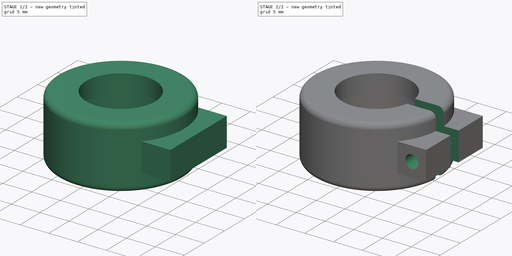
[diagram: build sequence overview — one tinted view per stage of 2, left to right]
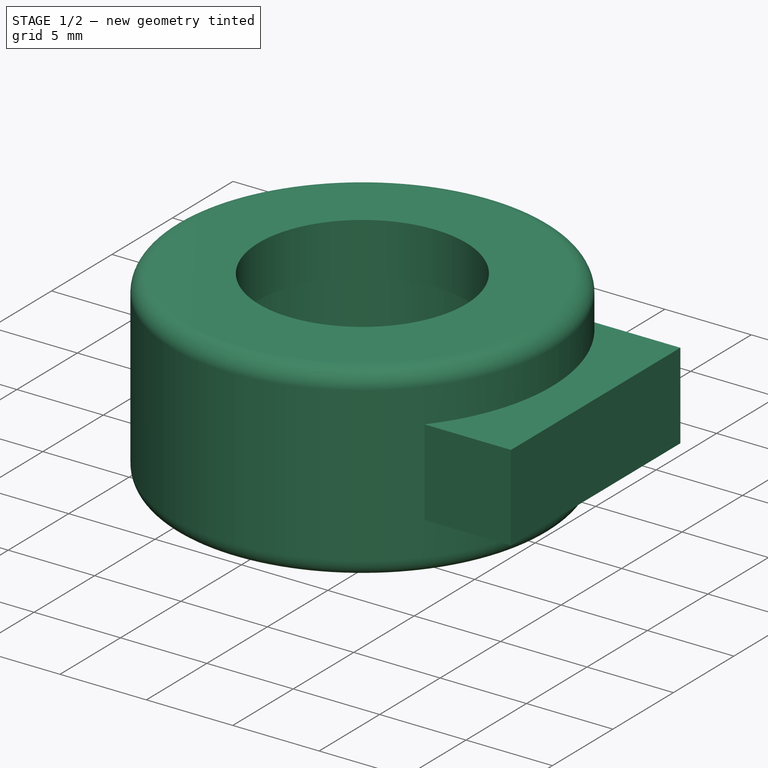
[diagram: stage 1 of 2 — iso view after this stage's code; geometry added in this stage tinted green]
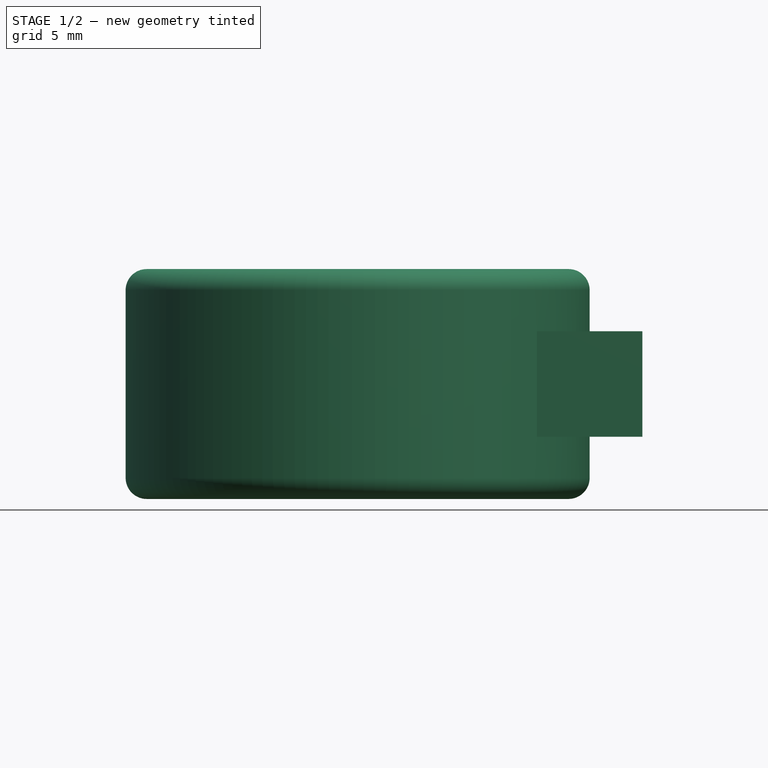
[diagram: stage 1 of 2 — front view after this stage's code; geometry added in this stage tinted green]
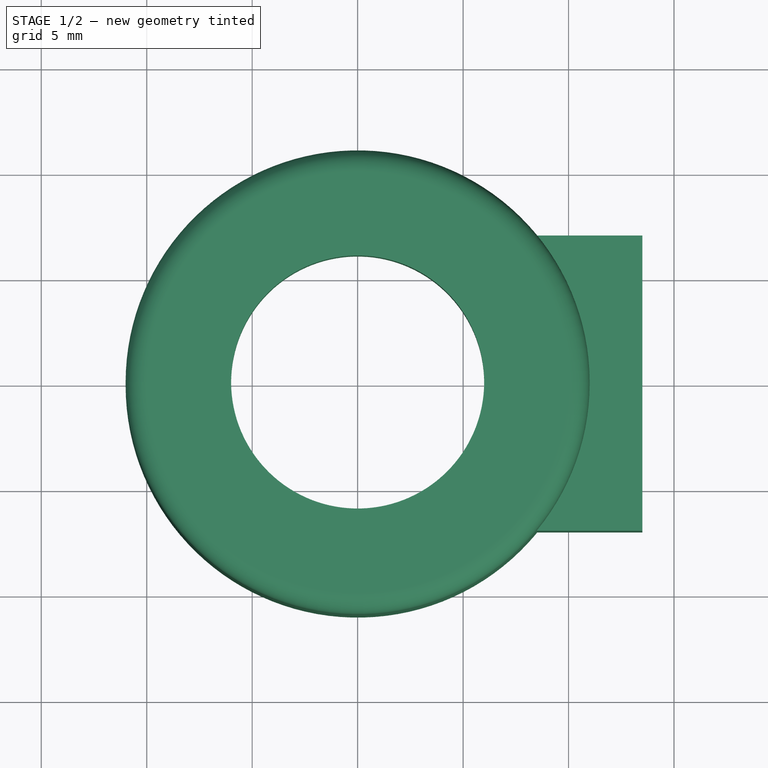
[diagram: stage 1 of 2 — top view after this stage's code; geometry added in this stage tinted green]
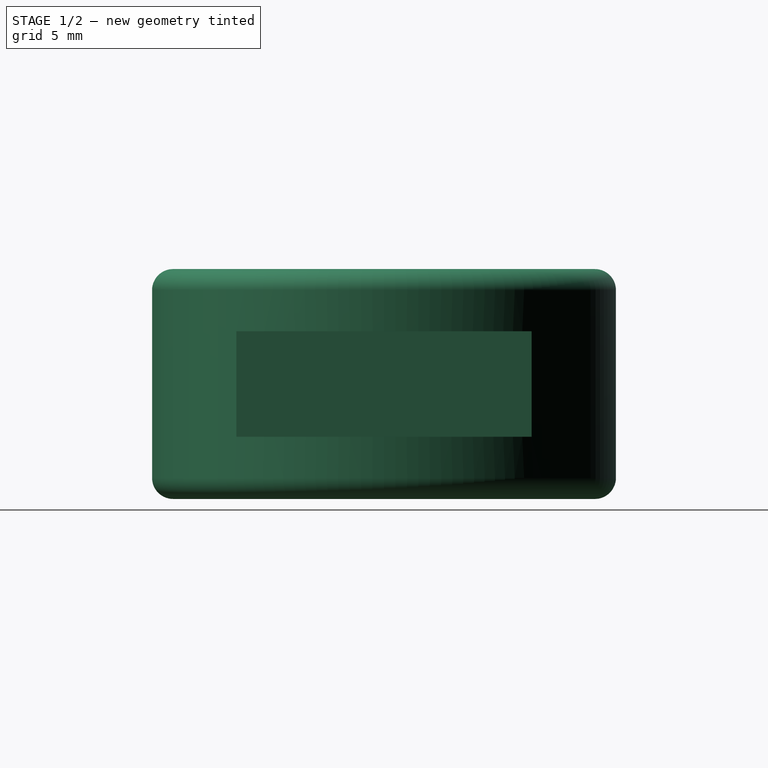
[diagram: stage 1 of 2 — right view after this stage's code; geometry added in this stage tinted green]
FCSTD DOCUMENT  (FreeCAD 0.21R31300 (Git))
Label: FilterHolder
License: All rights reserved
LicenseURL: http://en.wikipedia.org/wiki/All_rights_reserved
objects: Sketcher::SketchObject×4, PartDesign::Pocket×2, PartDesign::Revolution×1, PartDesign::Pad×1, PartDesign::Body×1
note: 13 computed .brp shape members not serialized (recipe doc carries the construction recipe); baked Part::Feature solids carry a one-line shape summary decoded from their .brp

FEATURE [Sketcher::SketchObject] Sketch
  FullyConstrained = true
  MapMode = 5
  Placement = pos=(0,0,0) rot=(1,0,0;1.5708rad)
  Support = -> [XZ_Plane]
  sketch-geometry (14):
    g0: LineSegment StartX=7.3 StartY=1 StartZ=0 EndX=7.5 EndY=1 EndZ=0
    g1: LineSegment StartX=7.5 StartY=1 StartZ=0 EndX=7.5 EndY=3.1 EndZ=0
    g2: LineSegment StartX=7.5 StartY=3.1 StartZ=0 EndX=6.8 EndY=3.1 EndZ=0
    g3: LineSegment StartX=6.8 StartY=3.1 StartZ=0 EndX=6.8 EndY=3.3 EndZ=0
    g4: LineSegment StartX=6.8 StartY=3.3 StartZ=0 EndX=7 EndY=3.3 EndZ=0
    g5: LineSegment StartX=7 StartY=3.3 StartZ=0 EndX=7 EndY=7.9 EndZ=0
    g6: LineSegment StartX=7 StartY=7.9 StartZ=0 EndX=6 EndY=7.9 EndZ=0
    g7: LineSegment StartX=6 StartY=7.9 StartZ=0 EndX=6 EndY=10.9 EndZ=0
    g8: LineSegment StartX=6 StartY=10.9 StartZ=0 EndX=10 EndY=10.9 EndZ=0
    g9: LineSegment StartX=11 StartY=9.9 StartZ=0 EndX=11 EndY=1 EndZ=0
    g10: LineSegment StartX=10 StartY=0 StartZ=0 EndX=8.3 EndY=0 EndZ=0
    g11: ArcOfCircle CenterX=8.3 CenterY=1 CenterZ=0 NormalX=0 NormalY=0 NormalZ=1 AngleXU=0 Radius=1 StartAngle=3.14159 EndAngle=4.71239
    g12: ArcOfCircle CenterX=10 CenterY=1 CenterZ=0 NormalX=0 NormalY=0 NormalZ=1 AngleXU=0 Radius=1 StartAngle=4.71239 EndAngle=6.28319
    g13: ArcOfCircle CenterX=10 CenterY=9.9 CenterZ=0 NormalX=0 NormalY=0 NormalZ=1 AngleXU=0 Radius=1 StartAngle=3e-16 EndAngle=1.5708
  constraints (40):
    c: PointOnObject(g10,g-1)
    c: Horizontal(g0)
    c: Coincident(g0,g1)
    c: Coincident(g1,g2)
    c: Coincident(g2,g3)
    c: Vertical(g3)
    c: Coincident(g3,g4)
    c: Horizontal(g4)
    c: Coincident(g4,g5)
    c: Coincident(g5,g6)
    c: Horizontal(g6)
    c: Coincident(g6,g7)
    c: Coincident(g7,g8)
    c: Horizontal(g8)
    c: Vertical(g9)
    c: Coincident(g11,g0)
    c: Tangent(g11,g10) = 1.5708
    c: PointOnObject(g11,g0)
    c: Vertical(g1)
    c: Horizontal(g2)
    c: DistanceY(g1,g1) = 2.1
    c: DistanceX(g-1,g0) = 7.5
    c: DistanceX(g0,g0) = 0.2
    c: DistanceX(g-1,g4) = 7
    c: Vertical(g5)
    c: DistanceX(g-1,g6) = 6
    c: Vertical(g7)
    c: DistanceY(g5,g5) = 4.6
    c: DistanceY(g3,g3) = 0.2
    c: DistanceY(g7,g7) = 3
    c: DistanceY(g-1,g0) = 1
    c: DistanceX(g3,g4) = 0.2
    c: Tangent(g10,g12) = 1.5708
    c: Tangent(g9,g12) = 1.5708
    c: Tangent(g9,g13) = 1.5708
    c: Tangent(g8,g13) = 1.5708
    c: Equal(g11,g12)
    c: Equal(g12,g13)
    c: Horizontal(g10)
    c: DistanceX(g-1,g10) = 10
FEATURE [PartDesign::Revolution] Revolution
  Angle = 360
  Axis = (0,2e-16,1)
  Base = (0,0,0)
  Placement = pos=(0,0,0) rot=(1,0,0;1.5708rad)
  Profile = -> Sketch
  ReferenceAxis = -> Sketch [V_Axis]
  Reversed = true
FEATURE [Sketcher::SketchObject] Sketch001
  ExternalGeometry = -> [Revolution]
  FullyConstrained = true
  MapMode = 5
  Placement = pos=(0,0,0) rot=(1,0,0;1.5708rad)
  Support = -> [XZ_Plane]
  sketch-geometry (7):
    g0: LineSegment StartX=8.5 StartY=7.95 StartZ=0 EndX=13.5 EndY=7.95 EndZ=0
    g1: LineSegment StartX=13.5 StartY=7.95 StartZ=0 EndX=13.5 EndY=2.95 EndZ=0
    g2: LineSegment StartX=13.5 StartY=2.95 StartZ=0 EndX=8.5 EndY=2.95 EndZ=0
    g3: LineSegment StartX=8.5 StartY=2.95 StartZ=0 EndX=8.5 EndY=7.95 EndZ=0
    g4: LineSegment StartX=8.5 StartY=2.95 StartZ=0 EndX=13.5 EndY=7.95 EndZ=0
    g5: LineSegment StartX=8.5 StartY=7.95 StartZ=0 EndX=13.5 EndY=2.95 EndZ=0
    g6: GeomPoint X=11 Y=5.45 Z=0
  constraints (17):
    c: Coincident(g0,g1)
    c: Coincident(g1,g2)
    c: Coincident(g2,g3)
    c: Coincident(g3,g0)
    c: Horizontal(g0)
    c: Horizontal(g2)
    c: Vertical(g1)
    c: Vertical(g3)
    c: DistanceY(g1,g1) = 5
    c: DistanceX(g0,g0) = 5
    c: Coincident(g4,g2)
    c: Coincident(g4,g0)
    c: Coincident(g5,g0)
    c: Coincident(g5,g1)
    c: PointOnObject(g6,g5)
    c: PointOnObject(g6,g4)
    c: Symmetric(g-3,g-3,g6)
FEATURE [PartDesign::Pad] Pad
  BaseFeature = -> Revolution
  Direction = (0,-1,2e-16)
  Length = 14
  Length2 = 10
  Midplane = true
  Placement = pos=(0,0,0) rot=(1,0,0;1.5708rad)
  Profile = -> Sketch001
  ReferenceAxis = -> Sketch001 [N_Axis]
  Type = 0
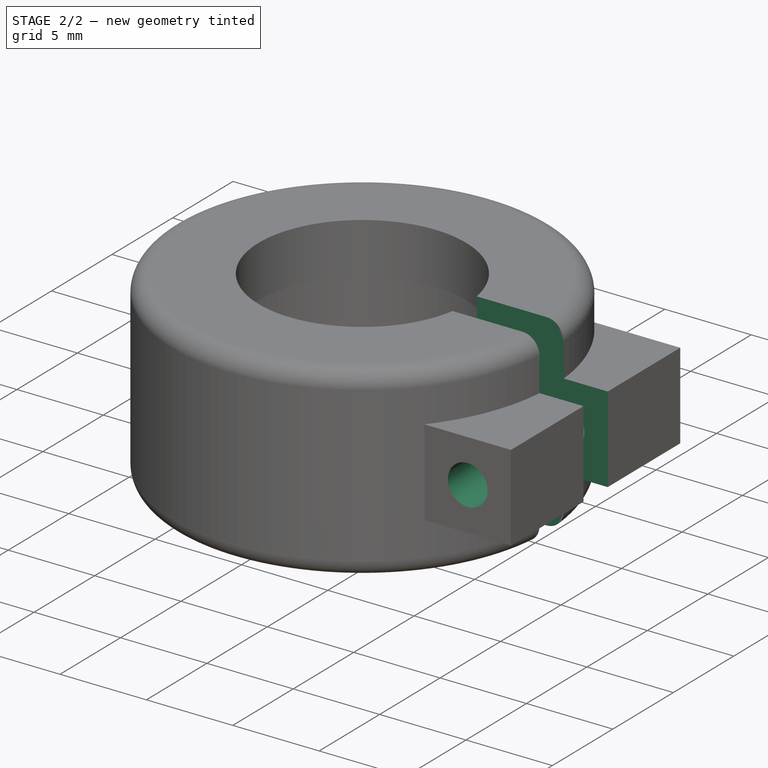
[diagram: stage 2 of 2 — iso view after this stage's code; geometry added in this stage tinted green]
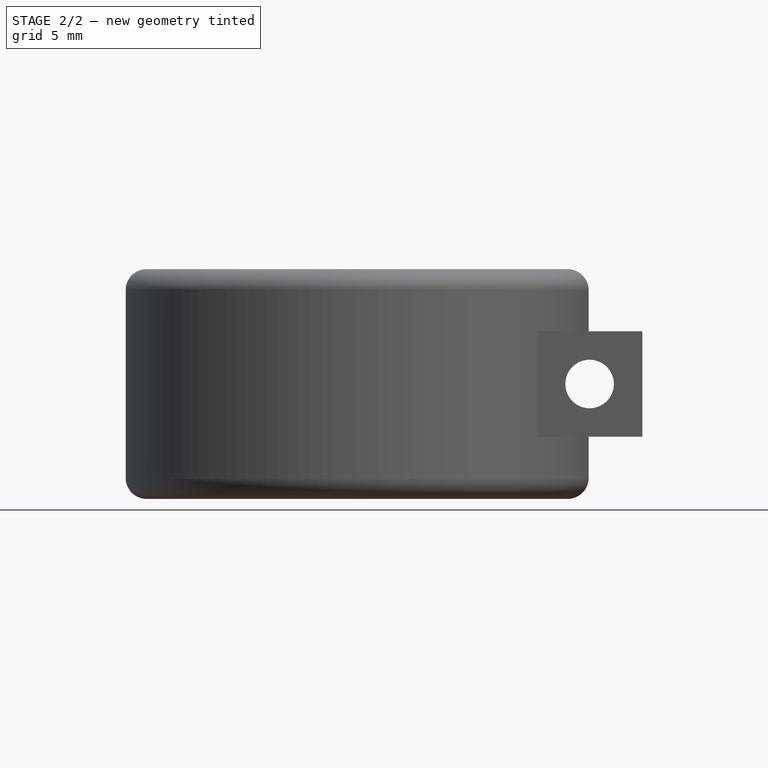
[diagram: stage 2 of 2 — front view after this stage's code; geometry added in this stage tinted green]
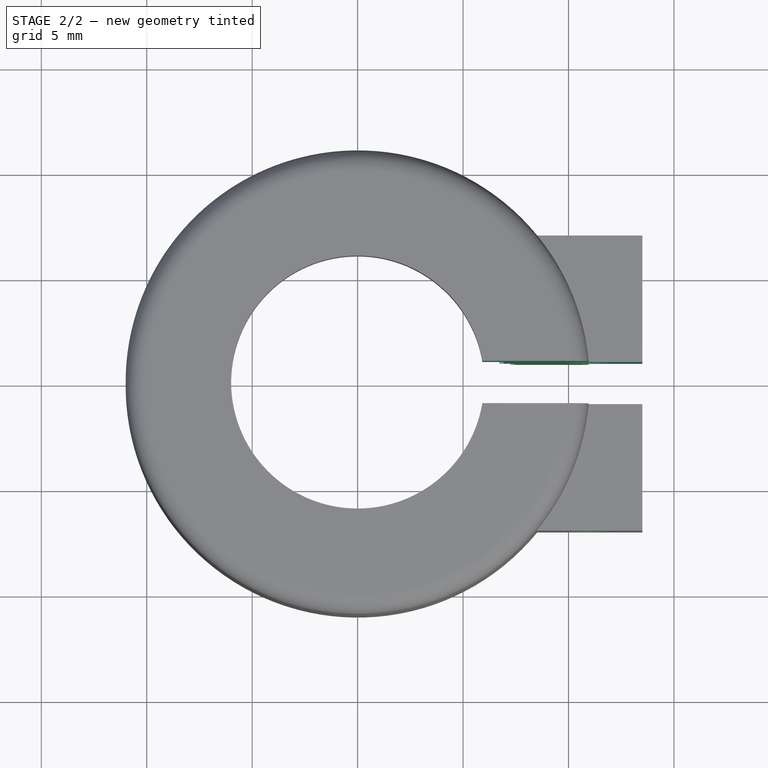
[diagram: stage 2 of 2 — top view after this stage's code; geometry added in this stage tinted green]
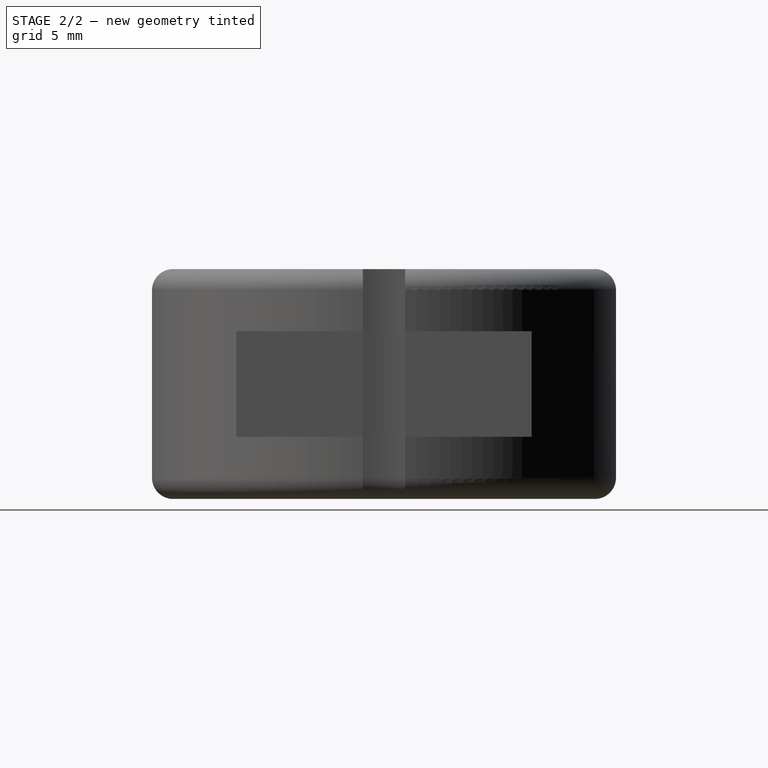
[diagram: stage 2 of 2 — right view after this stage's code; geometry added in this stage tinted green]
FEATURE [Sketcher::SketchObject] Sketch002
  FullyConstrained = true
  MapMode = 5
  Placement = pos=(13.5,0,0) rot=(0.707107,0,0.707107;3.14159rad)
  Support = -> [Pad]
  sketch-geometry (4):
    g0: LineSegment StartX=0 StartY=1 StartZ=0 EndX=12 EndY=1 EndZ=0
    g1: LineSegment StartX=12 StartY=1 StartZ=0 EndX=12 EndY=-1 EndZ=0
    g2: LineSegment StartX=12 StartY=-1 StartZ=0 EndX=0 EndY=-1 EndZ=0
    g3: LineSegment StartX=0 StartY=-1 StartZ=0 EndX=0 EndY=1 EndZ=0
  constraints (11):
    c: Coincident(g0,g1)
    c: Coincident(g1,g2)
    c: Coincident(g2,g3)
    c: Coincident(g3,g0)
    c: Horizontal(g0)
    c: Horizontal(g2)
    c: Vertical(g1)
    c: PointOnObject(g0,g-2)
    c: Symmetric(g2,g0,g-1)
    c: DistanceX(g-1,g1) = 12
    c: DistanceY(g2,g0) = 2
FEATURE [PartDesign::Pocket] Pocket
  BaseFeature = -> Pad
  Direction = (-1,0,2e-16)
  Length = 9
  Length2 = 5
  Placement = pos=(0,0,0) rot=(1,0,0;1.5708rad)
  Profile = -> Sketch002
  ReferenceAxis = -> Sketch002 [N_Axis]
  Type = 0
FEATURE [Sketcher::SketchObject] Sketch003
  ExternalGeometry = -> [Pocket]
  FullyConstrained = true
  MapMode = 5
  Placement = pos=(0,-7,1.6e-15) rot=(1,0,0;1.5708rad)
  Support = -> [Pocket]
  sketch-geometry (2):
    g0: LineSegment StartX=8.5 StartY=7.95 StartZ=0 EndX=13.5 EndY=2.95 EndZ=0
    g1: Circle CenterX=11 CenterY=5.45 CenterZ=0 NormalX=0 NormalY=0 NormalZ=1 AngleXU=0 Radius=1.15
  constraints (4):
    c: Coincident(g0,g-3)
    c: Coincident(g0,g-4)
    c: Symmetric(g0,g0,g1)
    c: Diameter(g1) = 2.3
FEATURE [PartDesign::Pocket] Pocket001
  BaseFeature = -> Pocket
  Direction = (0,1,-2e-16)
  Length = 5
  Length2 = 5
  Placement = pos=(0,0,0) rot=(1,0,0;1.5708rad)
  Profile = -> Sketch003
  ReferenceAxis = -> Sketch003 [N_Axis]
  Type = 1
FEATURE [PartDesign::Body] Body
  Group = -> [Sketch,Revolution,Sketch001,Pad,Sketch002,Pocket,Sketch003,Pocket001]
  Origin = -> Origin
  Tip = -> Pocket001
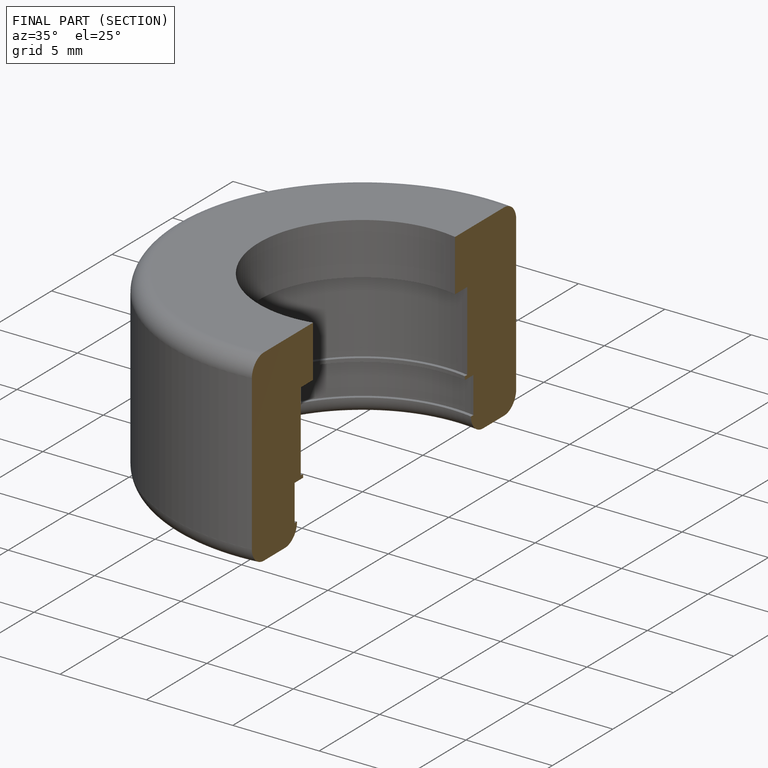
[diagram: finished part — half-section view (interior)]
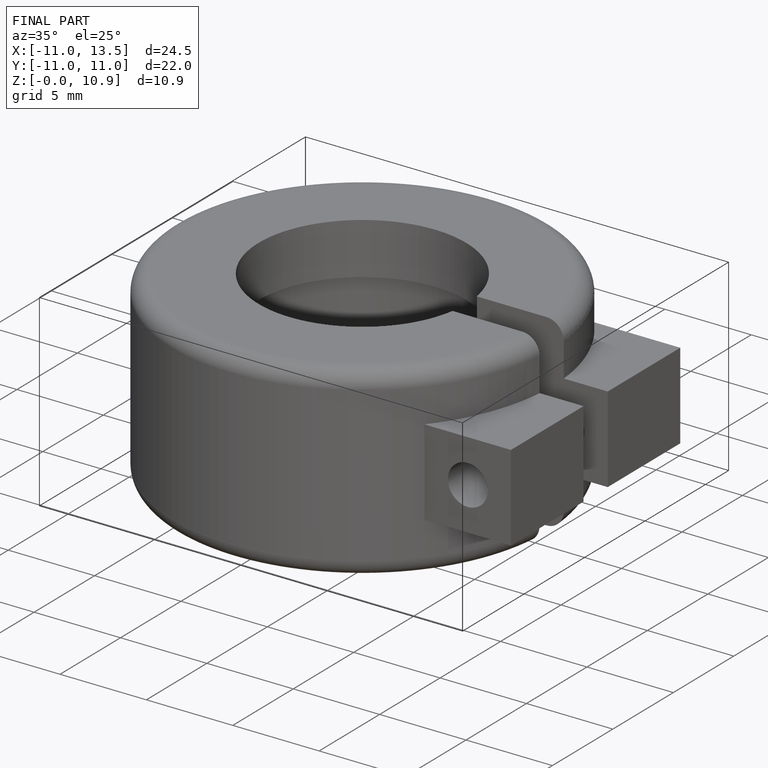
[diagram: finished part — iso view with bounding-box wireframe]
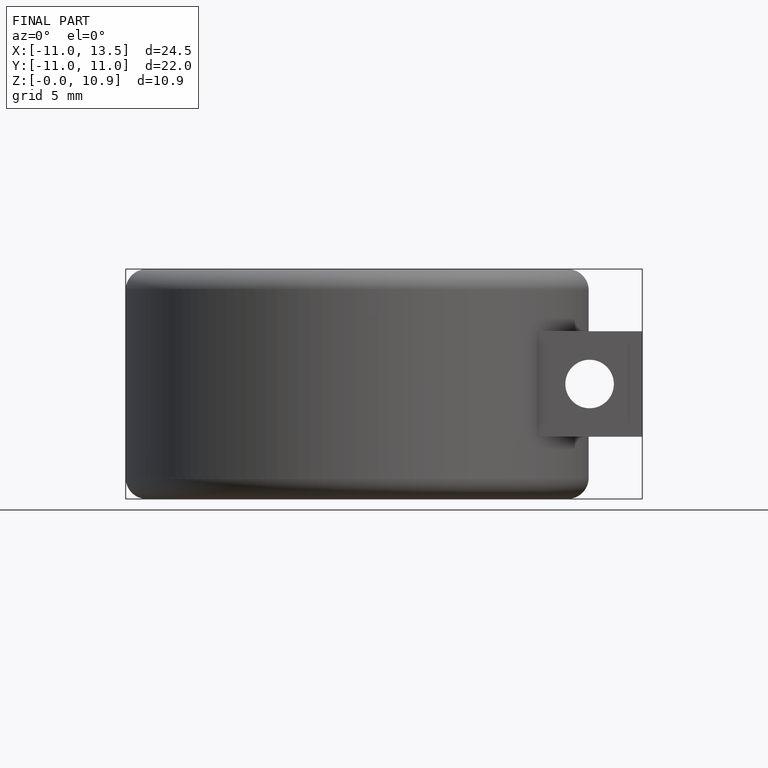
[diagram: finished part — front view with bounding-box wireframe]
